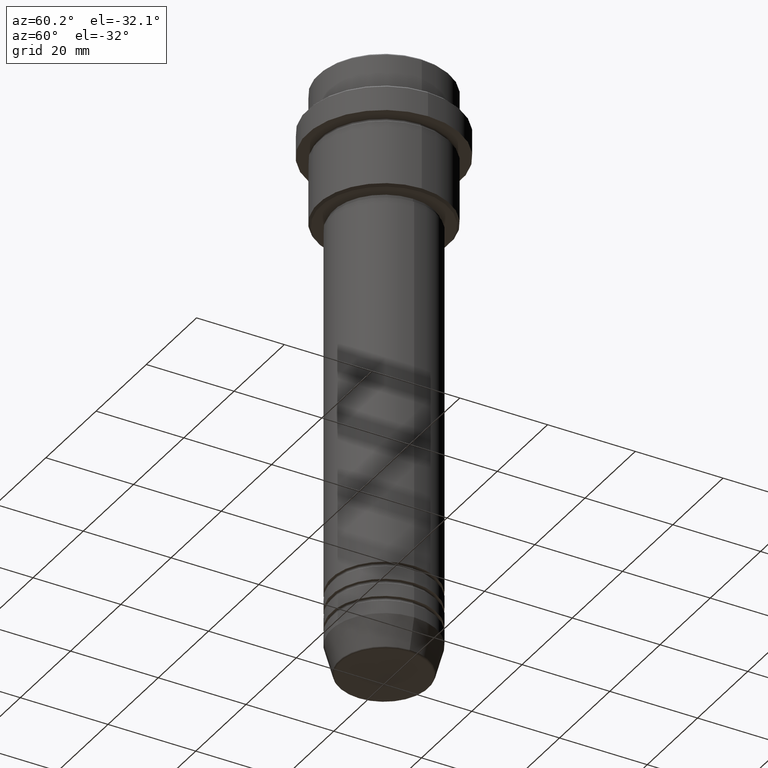
[diagram: clean part render]
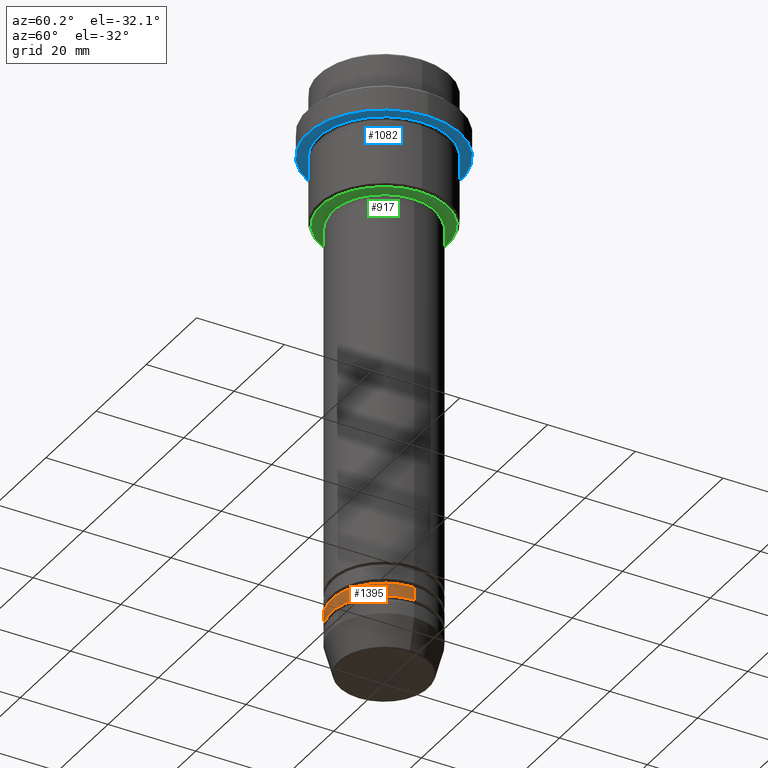
[diagram: same view with three faces highlighted in distinct colors, each labeled with its STEP entity id]
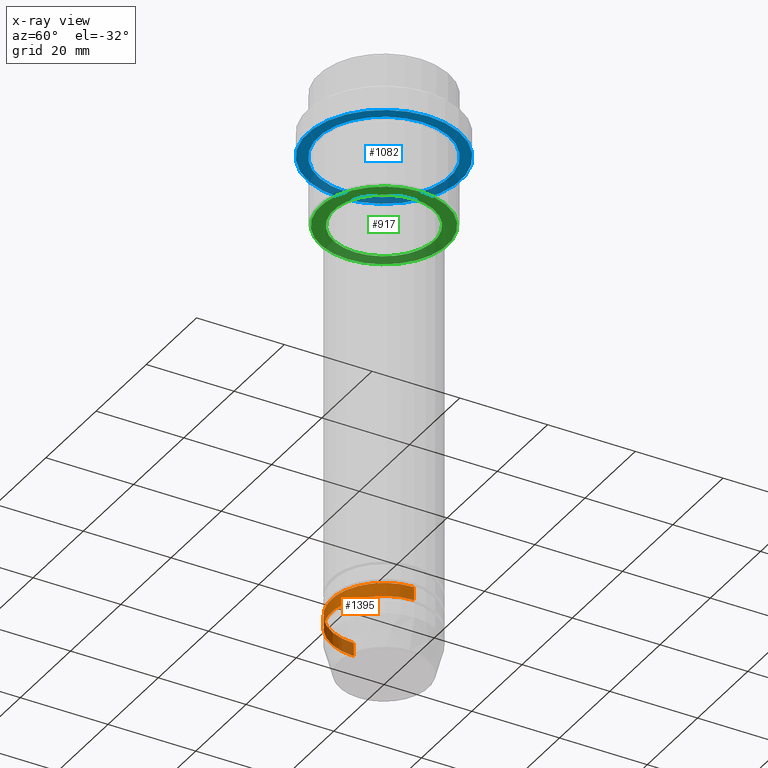
[diagram: x-ray of the same camera — body ghosted, the three highlighted faces saturated]
A machine part, auxiliary view with three faces highlighted in distinct colors.
The next image is the same camera in x-ray (body ghosted, the three faces saturated) — at least one of them is partly hidden behind the body in this view.
Their STEP definitions:

[orange] entity #1395 — the highlighted cylindrical surface (partial cylindrical patch) has radius 12 mm, axis along (-0, -0, 1).
#44 = LINE ( 'NONE', #599, #825 ) ;
#102 = CARTESIAN_POINT ( 'NONE',  ( -12.00000000000000000, 1.469576158976823947E-15, 0.000000000000000000 ) ) ;
#155 = CARTESIAN_POINT ( 'NONE',  ( 0.000000000000000000, 0.000000000000000000, 0.000000000000000000 ) ) ;
#163 = VERTEX_POINT ( 'NONE', #884 ) ;
#164 = EDGE_CURVE ( 'NONE', #235, #678, #397, .T. ) ;
#174 = AXIS2_PLACEMENT_3D ( 'NONE', #1316, #1211, #437 ) ;
#184 = DIRECTION ( 'NONE',  ( -0.000000000000000000, -0.000000000000000000, 1.000000000000000000 ) ) ;
#186 = DIRECTION ( 'NONE',  ( 1.000000000000000000, 0.000000000000000000, 0.000000000000000000 ) ) ;
#235 = VERTEX_POINT ( 'NONE', #673 ) ;
#381 = AXIS2_PLACEMENT_3D ( 'NONE', #155, #184, #1355 ) ;
#397 = CIRCLE ( 'NONE', #174, 12.00000000000000000 ) ;
#437 = DIRECTION ( 'NONE',  ( 1.000000000000000000, 0.000000000000000000, 0.000000000000000000 ) ) ;
#464 = EDGE_CURVE ( 'NONE', #163, #678, #44, .T. ) ;
#564 = DIRECTION ( 'NONE',  ( -0.000000000000000000, -0.000000000000000000, 1.000000000000000000 ) ) ;
#599 = CARTESIAN_POINT ( 'NONE',  ( 12.00000000000000000, 0.000000000000000000, 0.000000000000000000 ) ) ;
#621 = AXIS2_PLACEMENT_3D ( 'NONE', #724, #944, #186 ) ;
#622 = CYLINDRICAL_SURFACE ( 'NONE', #381, 12.00000000000000000 ) ;
#650 = LINE ( 'NONE', #102, #1257 ) ;
#673 = CARTESIAN_POINT ( 'NONE',  ( -12.00000000000000000, 1.469576158976823947E-15, -121.9999999999999005 ) ) ;
#678 = VERTEX_POINT ( 'NONE', #783 ) ;
#692 = EDGE_CURVE ( 'NONE', #915, #235, #650, .T. ) ;
#724 = CARTESIAN_POINT ( 'NONE',  ( 0.000000000000000000, 0.000000000000000000, -124.9999999999998863 ) ) ;
#783 = CARTESIAN_POINT ( 'NONE',  ( 12.00000000000000000, 0.000000000000000000, -121.9999999999999005 ) ) ;
#825 = VECTOR ( 'NONE', #1126, 1000.000000000000000 ) ;
#847 = CIRCLE ( 'NONE', #621, 12.00000000000000000 ) ;
#884 = CARTESIAN_POINT ( 'NONE',  ( 12.00000000000000000, 0.000000000000000000, -124.9999999999998863 ) ) ;
#915 = VERTEX_POINT ( 'NONE', #1363 ) ;
#919 = EDGE_CURVE ( 'NONE', #915, #163, #847, .T. ) ;
#927 = FACE_OUTER_BOUND ( 'NONE', #1301, .T. ) ;
#944 = DIRECTION ( 'NONE',  ( -0.000000000000000000, -0.000000000000000000, 1.000000000000000000 ) ) ;
#956 = ORIENTED_EDGE ( 'NONE', *, *, #692, .F. ) ;
#1106 = ORIENTED_EDGE ( 'NONE', *, *, #164, .F. ) ;
#1126 = DIRECTION ( 'NONE',  ( -0.000000000000000000, -0.000000000000000000, 1.000000000000000000 ) ) ;
#1177 = ORIENTED_EDGE ( 'NONE', *, *, #919, .T. ) ;
#1211 = DIRECTION ( 'NONE',  ( -0.000000000000000000, -0.000000000000000000, 1.000000000000000000 ) ) ;
#1257 = VECTOR ( 'NONE', #564, 1000.000000000000000 ) ;
#1301 = EDGE_LOOP ( 'NONE', ( #956, #1177, #1407, #1106 ) ) ;
#1316 = CARTESIAN_POINT ( 'NONE',  ( 0.000000000000000000, 0.000000000000000000, -121.9999999999999005 ) ) ;
#1355 = DIRECTION ( 'NONE',  ( 1.000000000000000000, 0.000000000000000000, 0.000000000000000000 ) ) ;
#1363 = CARTESIAN_POINT ( 'NONE',  ( -12.00000000000000000, 1.469576158976823947E-15, -124.9999999999998863 ) ) ;
#1395 = ADVANCED_FACE ( 'NONE', ( #927 ), #622, .T. ) ;
#1407 = ORIENTED_EDGE ( 'NONE', *, *, #464, .T. ) ;

[blue] entity #1082 — the highlighted planar face has unit normal (0, 0, -1).
#7 = ORIENTED_EDGE ( 'NONE', *, *, #1048, .F. ) ;
#21 = EDGE_CURVE ( 'NONE', #986, #261, #929, .T. ) ;
#35 = ORIENTED_EDGE ( 'NONE', *, *, #591, .F. ) ;
#37 = CARTESIAN_POINT ( 'NONE',  ( 0.000000000000000000, 0.000000000000000000, -15.00000000000000000 ) ) ;
#70 = CIRCLE ( 'NONE', #802, 17.50000000000000000 ) ;
#143 = VERTEX_POINT ( 'NONE', #371 ) ;
#168 = DIRECTION ( 'NONE',  ( 1.000000000000000000, 0.000000000000000000, 0.000000000000000000 ) ) ;
#190 = ORIENTED_EDGE ( 'NONE', *, *, #21, .T. ) ;
#204 = DIRECTION ( 'NONE',  ( 0.000000000000000000, 0.000000000000000000, -1.000000000000000000 ) ) ;
#261 = VERTEX_POINT ( 'NONE', #571 ) ;
#346 = DIRECTION ( 'NONE',  ( -0.000000000000000000, -0.000000000000000000, 1.000000000000000000 ) ) ;
#371 = CARTESIAN_POINT ( 'NONE',  ( -17.50000000000000000, 2.143131898507868248E-15, -15.00000000000000000 ) ) ;
#380 = CARTESIAN_POINT ( 'NONE',  ( -14.99999999999999467, 0.000000000000000000, -15.00000000000000000 ) ) ;
#441 = CIRCLE ( 'NONE', #470, 14.99999999999999467 ) ;
#444 = EDGE_CURVE ( 'NONE', #261, #986, #441, .T. ) ;
#470 = AXIS2_PLACEMENT_3D ( 'NONE', #37, #346, #1119 ) ;
#496 = EDGE_LOOP ( 'NONE', ( #190, #860 ) ) ;
#504 = DIRECTION ( 'NONE',  ( -0.000000000000000000, -0.000000000000000000, 1.000000000000000000 ) ) ;
#523 = AXIS2_PLACEMENT_3D ( 'NONE', #1050, #504, #723 ) ;
#571 = CARTESIAN_POINT ( 'NONE',  ( 14.99999999999999467, 1.836970198721029194E-15, -15.00000000000000000 ) ) ;
#591 = EDGE_CURVE ( 'NONE', #671, #143, #70, .T. ) ;
#602 = AXIS2_PLACEMENT_3D ( 'NONE', #1056, #763, #649 ) ;
#649 = DIRECTION ( 'NONE',  ( 1.000000000000000000, 0.000000000000000000, 0.000000000000000000 ) ) ;
#671 = VERTEX_POINT ( 'NONE', #1290 ) ;
#687 = CIRCLE ( 'NONE', #602, 17.50000000000000000 ) ;
#713 = AXIS2_PLACEMENT_3D ( 'NONE', #966, #204, #755 ) ;
#723 = DIRECTION ( 'NONE',  ( -1.000000000000000000, 0.000000000000000000, 0.000000000000000000 ) ) ;
#755 = DIRECTION ( 'NONE',  ( -1.000000000000000000, 0.000000000000000000, -0.000000000000000000 ) ) ;
#763 = DIRECTION ( 'NONE',  ( -0.000000000000000000, -0.000000000000000000, 1.000000000000000000 ) ) ;
#802 = AXIS2_PLACEMENT_3D ( 'NONE', #1144, #836, #168 ) ;
#836 = DIRECTION ( 'NONE',  ( -0.000000000000000000, -0.000000000000000000, 1.000000000000000000 ) ) ;
#860 = ORIENTED_EDGE ( 'NONE', *, *, #444, .T. ) ;
#929 = CIRCLE ( 'NONE', #523, 14.99999999999999467 ) ;
#966 = CARTESIAN_POINT ( 'NONE',  ( 0.000000000000000000, 17.50000000000000000, -15.00000000000000000 ) ) ;
#986 = VERTEX_POINT ( 'NONE', #380 ) ;
#1048 = EDGE_CURVE ( 'NONE', #143, #671, #687, .T. ) ;
#1050 = CARTESIAN_POINT ( 'NONE',  ( 0.000000000000000000, 0.000000000000000000, -15.00000000000000000 ) ) ;
#1056 = CARTESIAN_POINT ( 'NONE',  ( 0.000000000000000000, 0.000000000000000000, -15.00000000000000000 ) ) ;
#1082 = ADVANCED_FACE ( 'NONE', ( #1187, #1307 ), #1293, .T. ) ;
#1119 = DIRECTION ( 'NONE',  ( -1.000000000000000000, 0.000000000000000000, 0.000000000000000000 ) ) ;
#1144 = CARTESIAN_POINT ( 'NONE',  ( 0.000000000000000000, 0.000000000000000000, -15.00000000000000000 ) ) ;
#1160 = EDGE_LOOP ( 'NONE', ( #35, #7 ) ) ;
#1187 = FACE_BOUND ( 'NONE', #496, .T. ) ;
#1290 = CARTESIAN_POINT ( 'NONE',  ( 17.50000000000000000, 0.000000000000000000, -15.00000000000000000 ) ) ;
#1293 = PLANE ( 'NONE',  #713 ) ;
#1307 = FACE_OUTER_BOUND ( 'NONE', #1160, .T. ) ;

[green] entity #917 — the highlighted planar face has unit normal (0, 0, -1).
#5 = VERTEX_POINT ( 'NONE', #1349 ) ;
#40 = CARTESIAN_POINT ( 'NONE',  ( -11.49999999999999467, 1.408343819019455781E-15, -31.00000000000000000 ) ) ;
#57 = DIRECTION ( 'NONE',  ( 1.000000000000000000, 0.000000000000000000, 0.000000000000000000 ) ) ;
#63 = DIRECTION ( 'NONE',  ( -1.000000000000000000, 0.000000000000000000, -0.000000000000000000 ) ) ;
#71 = DIRECTION ( 'NONE',  ( 0.000000000000000000, 0.000000000000000000, -1.000000000000000000 ) ) ;
#76 = FACE_BOUND ( 'NONE', #488, .T. ) ;
#109 = CIRCLE ( 'NONE', #1105, 14.49999999999999822 ) ;
#178 = DIRECTION ( 'NONE',  ( -0.000000000000000000, -0.000000000000000000, 1.000000000000000000 ) ) ;
#195 = EDGE_CURVE ( 'NONE', #1193, #1033, #1253, .T. ) ;
#210 = DIRECTION ( 'NONE',  ( 0.000000000000000000, 0.000000000000000000, -1.000000000000000000 ) ) ;
#285 = EDGE_CURVE ( 'NONE', #814, #5, #109, .T. ) ;
#289 = FACE_OUTER_BOUND ( 'NONE', #1013, .T. ) ;
#387 = ORIENTED_EDGE ( 'NONE', *, *, #285, .T. ) ;
#423 = CIRCLE ( 'NONE', #1227, 14.49999999999999822 ) ;
#432 = CARTESIAN_POINT ( 'NONE',  ( 0.000000000000000000, 0.000000000000000000, -31.00000000000000000 ) ) ;
#445 = CIRCLE ( 'NONE', #472, 11.49999999999999467 ) ;
#472 = AXIS2_PLACEMENT_3D ( 'NONE', #1154, #178, #57 ) ;
#488 = EDGE_LOOP ( 'NONE', ( #1076, #561 ) ) ;
#501 = AXIS2_PLACEMENT_3D ( 'NONE', #1043, #71, #63 ) ;
#512 = ORIENTED_EDGE ( 'NONE', *, *, #823, .T. ) ;
#561 = ORIENTED_EDGE ( 'NONE', *, *, #195, .T. ) ;
#569 = DIRECTION ( 'NONE',  ( -1.000000000000000000, 0.000000000000000000, 0.000000000000000000 ) ) ;
#625 = PLANE ( 'NONE',  #501 ) ;
#647 = DIRECTION ( 'NONE',  ( 1.000000000000000000, 0.000000000000000000, 0.000000000000000000 ) ) ;
#701 = DIRECTION ( 'NONE',  ( 0.000000000000000000, 0.000000000000000000, -1.000000000000000000 ) ) ;
#793 = CARTESIAN_POINT ( 'NONE',  ( 0.000000000000000000, 0.000000000000000000, -31.00000000000000000 ) ) ;
#814 = VERTEX_POINT ( 'NONE', #901 ) ;
#823 = EDGE_CURVE ( 'NONE', #5, #814, #423, .T. ) ;
#855 = CARTESIAN_POINT ( 'NONE',  ( 0.000000000000000000, 0.000000000000000000, -31.00000000000000000 ) ) ;
#901 = CARTESIAN_POINT ( 'NONE',  ( -14.49999999999999822, 1.806354028742345802E-15, -31.00000000000000000 ) ) ;
#917 = ADVANCED_FACE ( 'NONE', ( #289, #76 ), #625, .T. ) ;
#972 = DIRECTION ( 'NONE',  ( -0.000000000000000000, -0.000000000000000000, 1.000000000000000000 ) ) ;
#981 = DIRECTION ( 'NONE',  ( -1.000000000000000000, 0.000000000000000000, 0.000000000000000000 ) ) ;
#1013 = EDGE_LOOP ( 'NONE', ( #512, #387 ) ) ;
#1024 = EDGE_CURVE ( 'NONE', #1033, #1193, #445, .T. ) ;
#1033 = VERTEX_POINT ( 'NONE', #1408 ) ;
#1043 = CARTESIAN_POINT ( 'NONE',  ( 0.000000000000000000, 15.00000000000000000, -31.00000000000000000 ) ) ;
#1076 = ORIENTED_EDGE ( 'NONE', *, *, #1024, .T. ) ;
#1105 = AXIS2_PLACEMENT_3D ( 'NONE', #432, #210, #981 ) ;
#1154 = CARTESIAN_POINT ( 'NONE',  ( 0.000000000000000000, 0.000000000000000000, -31.00000000000000000 ) ) ;
#1179 = AXIS2_PLACEMENT_3D ( 'NONE', #855, #972, #647 ) ;
#1193 = VERTEX_POINT ( 'NONE', #40 ) ;
#1227 = AXIS2_PLACEMENT_3D ( 'NONE', #793, #701, #569 ) ;
#1253 = CIRCLE ( 'NONE', #1179, 11.49999999999999467 ) ;
#1349 = CARTESIAN_POINT ( 'NONE',  ( 14.49999999999999822, 0.000000000000000000, -31.00000000000000000 ) ) ;
#1408 = CARTESIAN_POINT ( 'NONE',  ( 11.49999999999999467, 0.000000000000000000, -31.00000000000000000 ) ) ;